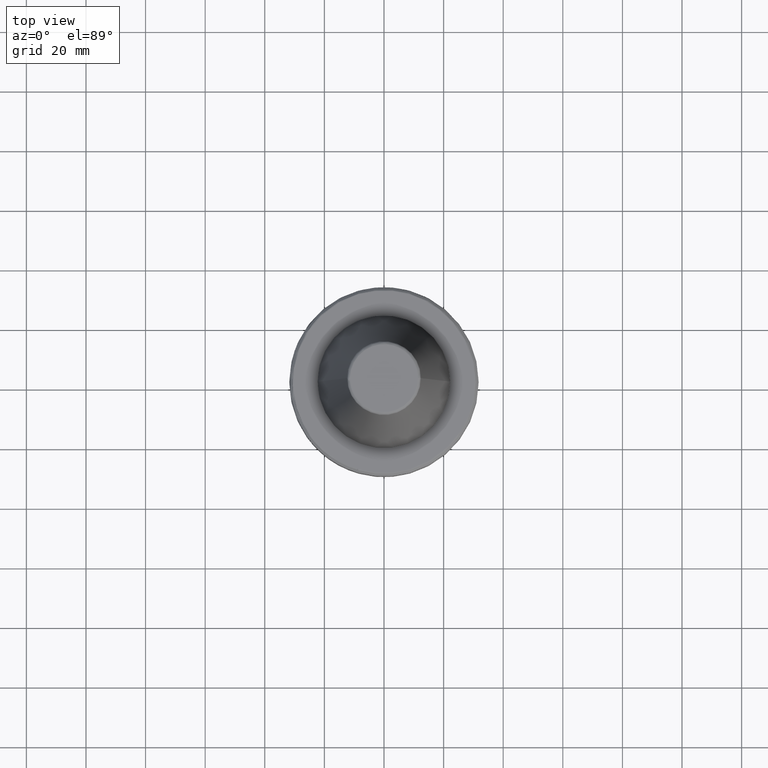
[diagram: clean part render]
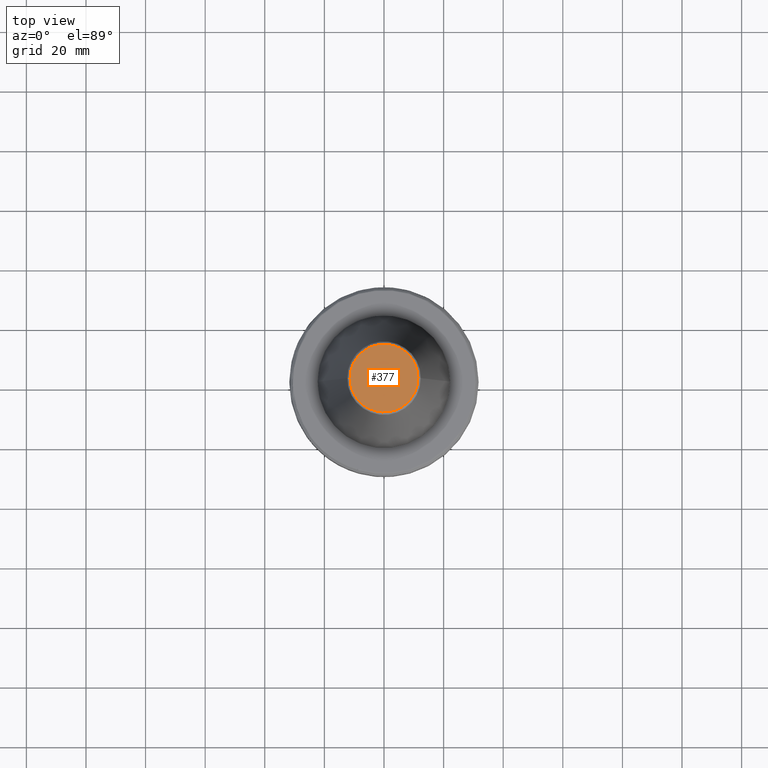
[diagram: same view with one face highlighted and labeled with its STEP entity id]
A machine part, top view. The second image highlights one B-rep face of the part: STEP entity #377.
In plain terms, the highlighted planar face has unit normal (0, 0, 1).
Its self-contained STEP definition (entity closure, byte-faithful):
#186 = ORIENTED_EDGE ( 'NONE', *, *, #1549, .F. ) ;
#200 = VERTEX_POINT ( 'NONE', #1852 ) ;
#358 = VERTEX_POINT ( 'NONE', #2698 ) ;
#377 = ADVANCED_FACE ( 'NONE', ( #662 ), #953, .T. ) ;
#385 = AXIS2_PLACEMENT_3D ( 'NONE', #967, #1162, #1125 ) ;
#389 =( BOUNDED_CURVE ( )  B_SPLINE_CURVE ( 3, ( #2865, #2819, #2565, #2385 ),
 .UNSPECIFIED., .F., .F. ) 
 B_SPLINE_CURVE_WITH_KNOTS ( ( 4, 4 ),
 ( 0.0000000000000000000, 1.000000000000000000 ),
 .UNSPECIFIED. ) 
 CURVE ( )  GEOMETRIC_REPRESENTATION_ITEM ( )  RATIONAL_B_SPLINE_CURVE ( ( 0.9606698264625276300, 0.3202232754875091200, 0.3202232754875091200, 0.9606698264625276300 ) ) 
 REPRESENTATION_ITEM ( '' )  );
#662 = FACE_OUTER_BOUND ( 'NONE', #948, .T. ) ;
#677 =( BOUNDED_CURVE ( )  B_SPLINE_CURVE ( 3, ( #2367, #2874, #1364, #3142 ),
 .UNSPECIFIED., .F., .T. ) 
 B_SPLINE_CURVE_WITH_KNOTS ( ( 4, 4 ),
 ( 0.0000000000000000000, 1.000000000000000000 ),
 .UNSPECIFIED. ) 
 CURVE ( )  GEOMETRIC_REPRESENTATION_ITEM ( )  RATIONAL_B_SPLINE_CURVE ( ( 0.9606698264625278500, 0.3202232754875091200, 0.3202232754875091200, 0.9606698264625278500 ) ) 
 REPRESENTATION_ITEM ( '' )  );
#948 = EDGE_LOOP ( 'NONE', ( #1994, #186 ) ) ;
#953 = PLANE ( 'NONE',  #385 ) ;
#967 = CARTESIAN_POINT ( 'NONE',  ( -11.52178454100000100, -11.52178454100000100, 68.40000000000000600 ) ) ;
#1125 = DIRECTION ( 'NONE',  ( 1.000000000000000000, 0.0000000000000000000, -0.0000000000000000000 ) ) ;
#1162 = DIRECTION ( 'NONE',  ( 0.0000000000000000000, 0.0000000000000000000, 1.000000000000000000 ) ) ;
#1364 = CARTESIAN_POINT ( 'NONE',  ( 11.38516258736446900, 22.77032517488440200, 68.39999999971480800 ) ) ;
#1549 = EDGE_CURVE ( 'NONE', #358, #200, #389, .T. ) ;
#1852 = CARTESIAN_POINT ( 'NONE',  ( -11.38516258738788200, 0.0000000000000000000, 68.39999999982889300 ) ) ;
#1994 = ORIENTED_EDGE ( 'NONE', *, *, #3081, .F. ) ;
#2367 = CARTESIAN_POINT ( 'NONE',  ( -11.38516258738788200, 0.0000000000000000000, 68.39999999982889300 ) ) ;
#2385 = CARTESIAN_POINT ( 'NONE',  ( -11.38516258738788200, 0.0000000000000000000, 68.39999999982889300 ) ) ;
#2565 = CARTESIAN_POINT ( 'NONE',  ( -11.38516258736446900, -22.77032517488440200, 68.39999999971479400 ) ) ;
#2698 = CARTESIAN_POINT ( 'NONE',  ( 11.38516258738788000, 0.0000000000000000000, 68.39999999982889300 ) ) ;
#2819 = CARTESIAN_POINT ( 'NONE',  ( 11.38516258736446900, -22.77032517488440200, 68.39999999971479400 ) ) ;
#2865 = CARTESIAN_POINT ( 'NONE',  ( 11.38516258738787800, 0.0000000000000000000, 68.39999999982889300 ) ) ;
#2874 = CARTESIAN_POINT ( 'NONE',  ( -11.38516258736446900, 22.77032517488440200, 68.39999999971480800 ) ) ;
#3081 = EDGE_CURVE ( 'NONE', #200, #358, #677, .T. ) ;
#3142 = CARTESIAN_POINT ( 'NONE',  ( 11.38516258738788000, 0.0000000000000000000, 68.39999999982889300 ) ) ;